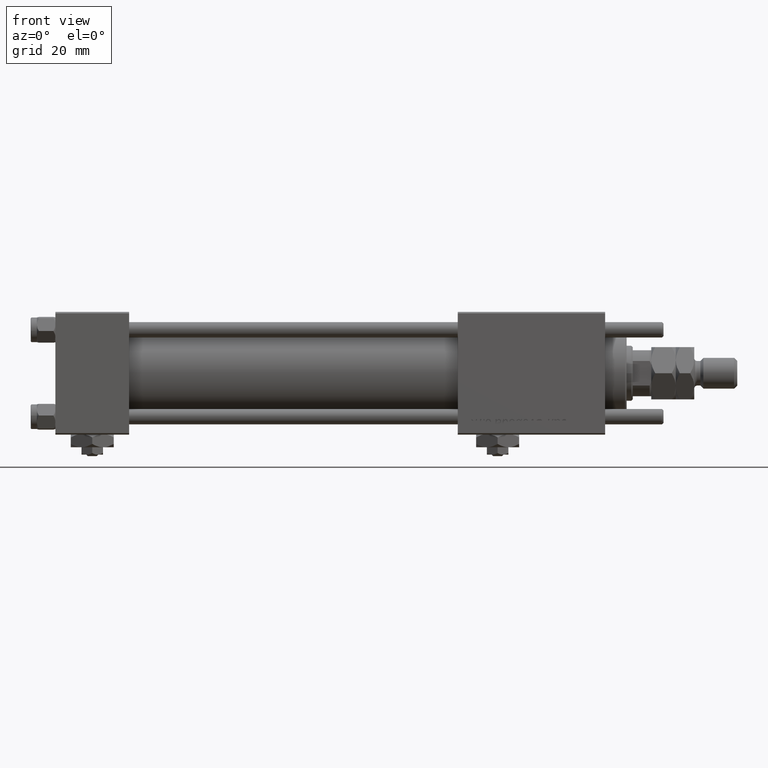
[diagram: clean part render]
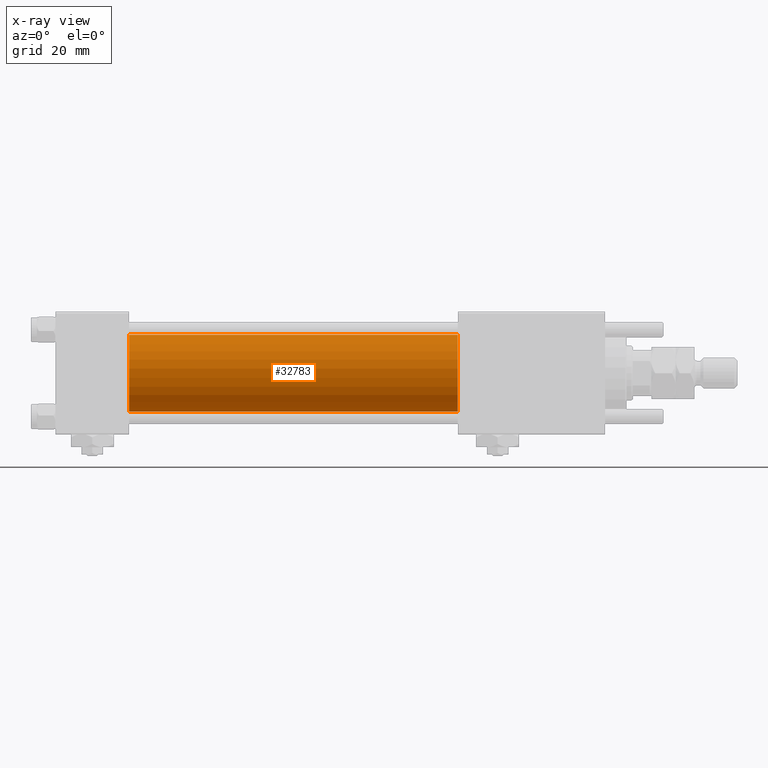
[diagram: x-ray — body ghosted, one internal face saturated and labeled with its STEP entity id]
A machine part, front view, then the same camera in x-ray: the body is ghosted and one INTERNAL B-rep face — a face not visible from any outside direction — is saturated and labeled: STEP entity #32783.
In plain terms, the highlighted cylindrical surface (partial cylindrical patch) has radius 12.5 mm, axis along (-1, -0, -0).
Its self-contained STEP definition (entity closure, byte-faithful):
#3731 = EDGE_CURVE ( 'NONE', #39435, #6320, #35806, .T. ) ;
#3798 = VECTOR ( 'NONE', #58215, 1000.000000000000000 ) ;
#5522 = CARTESIAN_POINT ( 'NONE',  ( 24.00000000000000000, -2.602085213965210642E-15, 12.49999999999999645 ) ) ;
#5754 = DIRECTION ( 'NONE',  ( 1.000000000000000000, 0.000000000000000000, 0.000000000000000000 ) ) ;
#6320 = VERTEX_POINT ( 'NONE', #47744 ) ;
#10963 = ORIENTED_EDGE ( 'NONE', *, *, #41881, .F. ) ;
#11498 = EDGE_LOOP ( 'NONE', ( #22501, #49506, #21595, #10963 ) ) ;
#13090 = DIRECTION ( 'NONE',  ( 0.000000000000000000, 0.000000000000000000, 1.000000000000000000 ) ) ;
#13387 = FACE_OUTER_BOUND ( 'NONE', #11498, .T. ) ;
#17674 = DIRECTION ( 'NONE',  ( -1.000000000000000000, -0.000000000000000000, -0.000000000000000000 ) ) ;
#18201 = VERTEX_POINT ( 'NONE', #20189 ) ;
#18566 = CARTESIAN_POINT ( 'NONE',  ( 131.0000000000000000, -2.602085213965210642E-15, 0.000000000000000000 ) ) ;
#18869 = DIRECTION ( 'NONE',  ( 0.000000000000000000, 0.000000000000000000, -1.000000000000000000 ) ) ;
#20150 = CIRCLE ( 'NONE', #22095, 12.49999999999999645 ) ;
#20189 = CARTESIAN_POINT ( 'NONE',  ( 131.0000000000000000, -1.071276715031019515E-15, -12.49999999999999645 ) ) ;
#21595 = ORIENTED_EDGE ( 'NONE', *, *, #3731, .F. ) ;
#22095 = AXIS2_PLACEMENT_3D ( 'NONE', #22398, #45648, #26076 ) ;
#22122 = AXIS2_PLACEMENT_3D ( 'NONE', #28036, #5754, #18869 ) ;
#22398 = CARTESIAN_POINT ( 'NONE',  ( 131.0000000000000000, -2.602085213965210642E-15, 0.000000000000000000 ) ) ;
#22501 = ORIENTED_EDGE ( 'NONE', *, *, #38934, .T. ) ;
#23881 = VERTEX_POINT ( 'NONE', #57234 ) ;
#26076 = DIRECTION ( 'NONE',  ( 0.000000000000000000, 0.000000000000000000, -1.000000000000000000 ) ) ;
#26080 = LINE ( 'NONE', #54530, #3798 ) ;
#28036 = CARTESIAN_POINT ( 'NONE',  ( 24.00000000000000000, -2.602085213965210642E-15, 0.000000000000000000 ) ) ;
#32783 = ADVANCED_FACE ( 'NONE', ( #13387 ), #46400, .F. ) ;
#35806 = CIRCLE ( 'NONE', #22122, 12.49999999999999645 ) ;
#38528 = AXIS2_PLACEMENT_3D ( 'NONE', #18566, #17674, #13090 ) ;
#38934 = EDGE_CURVE ( 'NONE', #23881, #18201, #20150, .T. ) ;
#39435 = VERTEX_POINT ( 'NONE', #5522 ) ;
#41881 = EDGE_CURVE ( 'NONE', #23881, #39435, #42936, .T. ) ;
#42936 = LINE ( 'NONE', #57311, #59276 ) ;
#45312 = EDGE_CURVE ( 'NONE', #18201, #6320, #26080, .T. ) ;
#45648 = DIRECTION ( 'NONE',  ( 1.000000000000000000, 0.000000000000000000, 0.000000000000000000 ) ) ;
#46400 = CYLINDRICAL_SURFACE ( 'NONE', #38528, 12.49999999999999645 ) ;
#47744 = CARTESIAN_POINT ( 'NONE',  ( 24.00000000000000000, -1.071276715031019515E-15, -12.49999999999999645 ) ) ;
#49506 = ORIENTED_EDGE ( 'NONE', *, *, #45312, .T. ) ;
#54530 = CARTESIAN_POINT ( 'NONE',  ( 131.0000000000000000, -1.071276715031019515E-15, -12.49999999999999645 ) ) ;
#57001 = DIRECTION ( 'NONE',  ( -1.000000000000000000, -0.000000000000000000, -0.000000000000000000 ) ) ;
#57234 = CARTESIAN_POINT ( 'NONE',  ( 131.0000000000000000, -2.602085213965210642E-15, 12.49999999999999645 ) ) ;
#57311 = CARTESIAN_POINT ( 'NONE',  ( 131.0000000000000000, -2.602085213965210642E-15, 12.49999999999999645 ) ) ;
#58215 = DIRECTION ( 'NONE',  ( -1.000000000000000000, -0.000000000000000000, -0.000000000000000000 ) ) ;
#59276 = VECTOR ( 'NONE', #57001, 1000.000000000000000 ) ;